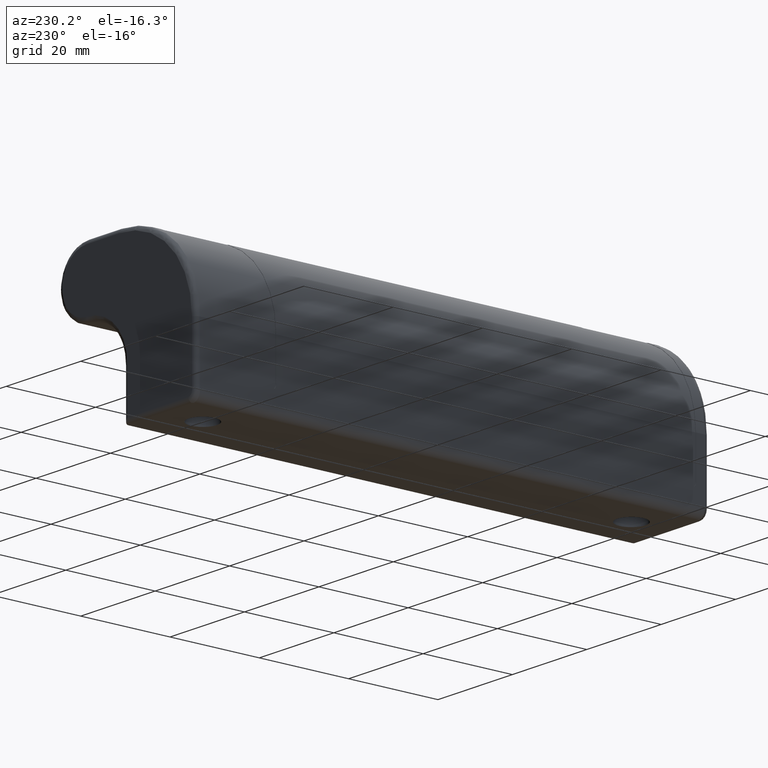
[diagram: clean part render]
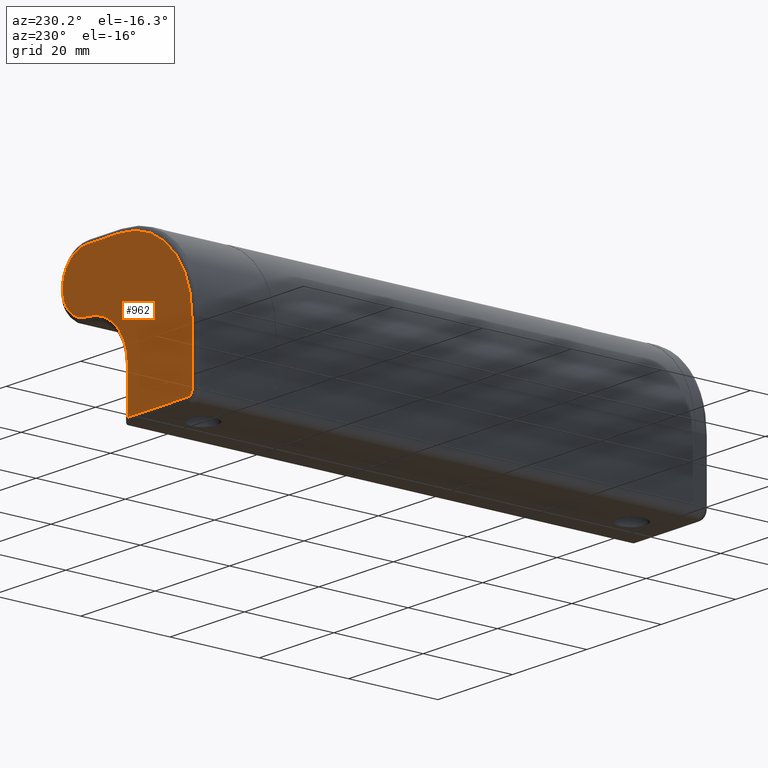
[diagram: same view with one face highlighted and labeled with its STEP entity id]
A machine part, auxiliary view. The second image highlights one B-rep face of the part: STEP entity #962.
In plain terms, the highlighted planar face has unit normal (0, -1, 0).
Its self-contained STEP definition (entity closure, byte-faithful):
#46=PLANE('',#1054);
#90=FACE_OUTER_BOUND('',#148,.T.);
#148=EDGE_LOOP('',(#796,#797,#798,#799,#800,#801,#802,#803,#804));
#239=LINE('',#1582,#316);
#241=LINE('',#1588,#318);
#243=LINE('',#1596,#320);
#244=LINE('',#1687,#321);
#316=VECTOR('',#1275,16.3400041553286);
#318=VECTOR('',#1281,9.49572029590565);
#320=VECTOR('',#1289,8.73668479804794);
#321=VECTOR('',#1308,13.1441380617739);
#362=CIRCLE('',#1052,19.3622382391187);
#364=CIRCLE('',#1055,2.);
#365=CIRCLE('',#1056,6.50218978674443);
#366=CIRCLE('',#1057,11.0050038431456);
#367=CIRCLE('',#1058,1.);
#452=VERTEX_POINT('',#1579);
#453=VERTEX_POINT('',#1581);
#455=VERTEX_POINT('',#1587);
#457=VERTEX_POINT('',#1593);
#458=VERTEX_POINT('',#1595);
#459=VERTEX_POINT('',#1675);
#460=VERTEX_POINT('',#1677);
#461=VERTEX_POINT('',#1682);
#462=VERTEX_POINT('',#1685);
#568=EDGE_CURVE('',#452,#453,#239,.T.);
#571=EDGE_CURVE('',#453,#455,#241,.T.);
#575=EDGE_CURVE('',#457,#458,#243,.T.);
#578=EDGE_CURVE('',#459,#460,#362,.T.);
#580=EDGE_CURVE('',#459,#458,#364,.T.);
#581=EDGE_CURVE('',#461,#457,#365,.T.);
#582=EDGE_CURVE('',#455,#461,#366,.T.);
#583=EDGE_CURVE('',#462,#452,#367,.T.);
#584=EDGE_CURVE('',#460,#462,#244,.T.);
#796=ORIENTED_EDGE('',*,*,#578,.F.);
#797=ORIENTED_EDGE('',*,*,#580,.T.);
#798=ORIENTED_EDGE('',*,*,#575,.F.);
#799=ORIENTED_EDGE('',*,*,#581,.F.);
#800=ORIENTED_EDGE('',*,*,#582,.F.);
#801=ORIENTED_EDGE('',*,*,#571,.F.);
#802=ORIENTED_EDGE('',*,*,#568,.F.);
#803=ORIENTED_EDGE('',*,*,#583,.F.);
#804=ORIENTED_EDGE('',*,*,#584,.F.);
#962=ADVANCED_FACE('',(#90),#46,.F.);
#1052=AXIS2_PLACEMENT_3D('',#1678,#1294,#1295);
#1054=AXIS2_PLACEMENT_3D('',#1680,#1298,#1299);
#1055=AXIS2_PLACEMENT_3D('',#1681,#1300,#1301);
#1056=AXIS2_PLACEMENT_3D('',#1683,#1302,#1303);
#1057=AXIS2_PLACEMENT_3D('',#1684,#1304,#1305);
#1058=AXIS2_PLACEMENT_3D('',#1686,#1306,#1307);
#1275=DIRECTION('',(1.,0.,0.));
#1281=DIRECTION('',(0.,0.,1.));
#1289=DIRECTION('',(-1.,0.,0.));
#1294=DIRECTION('center_axis',(0.,-1.,0.));
#1295=DIRECTION('ref_axis',(-1.,0.,0.));
#1298=DIRECTION('center_axis',(0.,-1.,0.));
#1299=DIRECTION('ref_axis',(0.,0.,-1.));
#1300=DIRECTION('center_axis',(0.,-1.,0.));
#1301=DIRECTION('ref_axis',(-0.010934269242787,0.,-0.999940219091185));
#1302=DIRECTION('center_axis',(0.,-1.,0.));
#1303=DIRECTION('ref_axis',(0.,0.,1.));
#1304=DIRECTION('center_axis',(0.,1.,0.));
#1305=DIRECTION('ref_axis',(-0.000714249070227,0.,0.9999997449241));
#1306=DIRECTION('center_axis',(0.,-1.,0.));
#1307=DIRECTION('ref_axis',(0.,0.,-1.));
#1308=DIRECTION('',(0.,0.,-1.));
#1579=CARTESIAN_POINT('',(-7.49999999996167,105.499999999578,1.));
#1581=CARTESIAN_POINT('',(8.84000415536689,105.499999999578,1.));
#1582=CARTESIAN_POINT('',(-7.49999999996167,105.499999999578,1.));
#1587=CARTESIAN_POINT('',(8.84000415536689,105.499999999578,10.4957202959056));
#1588=CARTESIAN_POINT('',(8.84000415536689,105.499999999578,1.));
#1593=CARTESIAN_POINT('',(19.83250350174,105.499999999578,34.5050992468769));
#1595=CARTESIAN_POINT('',(11.0958187036921,105.499999999578,34.5050992468769));
#1596=CARTESIAN_POINT('',(19.83250350174,105.499999999578,34.5050992468769));
#1675=CARTESIAN_POINT('',(11.0739501652065,105.499999999578,34.5052188086945));
#1677=CARTESIAN_POINT('',(-8.49999999996167,105.499999999578,15.1441380617739));
#1678=CARTESIAN_POINT('Origin',(10.862238239157,105.499999999578,15.1441380617745));
#1680=CARTESIAN_POINT('Origin',(-13.1834740533131,105.499999999578,-3.550642354533));
#1681=CARTESIAN_POINT('Origin',(11.0958187036921,105.499999999578,36.5050992468769));
#1682=CARTESIAN_POINT('',(19.8371476847496,105.499999999578,21.50072133194));
#1683=CARTESIAN_POINT('Origin',(19.83250350174,105.499999999578,28.0029094601325));
#1684=CARTESIAN_POINT('Origin',(19.8450079985125,105.499999999578,10.4957202959056));
#1685=CARTESIAN_POINT('',(-8.49999999996167,105.499999999578,2.));
#1686=CARTESIAN_POINT('Origin',(-7.49999999996167,105.499999999578,2.));
#1687=CARTESIAN_POINT('',(-8.49999999996167,105.499999999578,15.1441380617739));